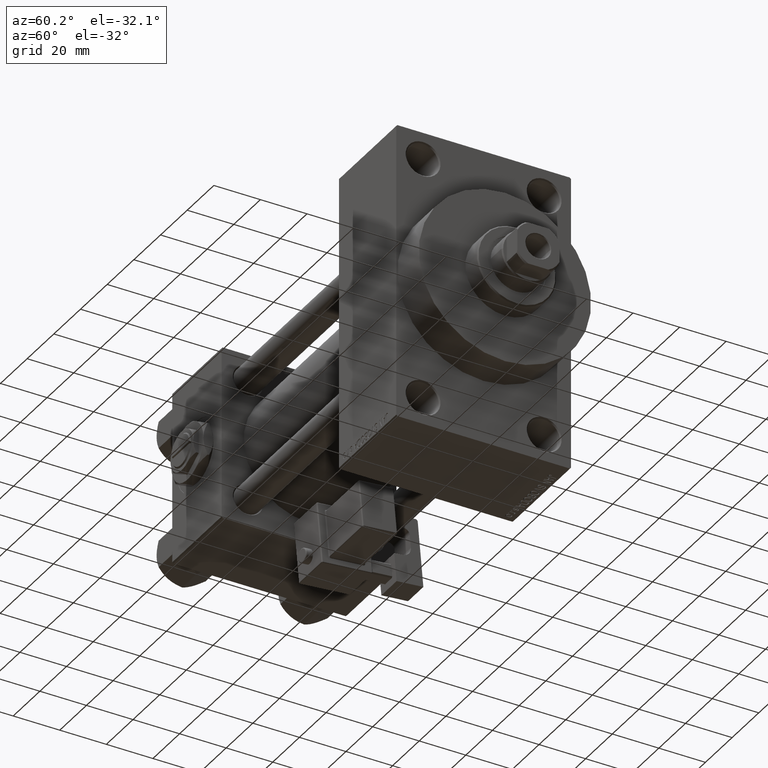
[diagram: clean part render]
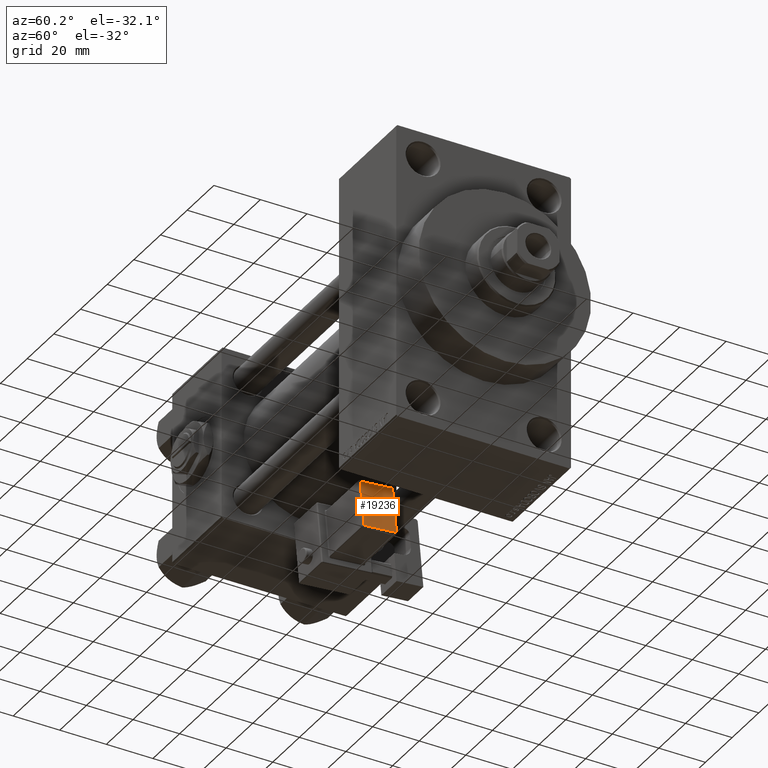
[diagram: same view with one face highlighted and labeled with its STEP entity id]
A machine part, auxiliary view. The second image highlights one B-rep face of the part: STEP entity #19236.
In plain terms, the highlighted planar face has unit normal (1, -0, 0).
Its self-contained STEP definition (entity closure, byte-faithful):
#1072 = LINE ( 'NONE', #5437, #34482 ) ;
#1773 = FACE_OUTER_BOUND ( 'NONE', #27756, .T. ) ;
#2431 = CARTESIAN_POINT ( 'NONE',  ( 33.74999999999999289, -21.75000000000000000, 22.00000000000001066 ) ) ;
#5437 = CARTESIAN_POINT ( 'NONE',  ( 33.75000000000000000, -35.75000000000000000, 2.000000000000008438 ) ) ;
#6315 = CARTESIAN_POINT ( 'NONE',  ( 33.75000000000000000, -21.75000000000000000, 2.500000000000010214 ) ) ;
#7273 = EDGE_CURVE ( 'NONE', #28248, #50378, #1072, .T. ) ;
#7900 = VECTOR ( 'NONE', #15156, 1000.000000000000000 ) ;
#7952 = ORIENTED_EDGE ( 'NONE', *, *, #16962, .T. ) ;
#8440 = VECTOR ( 'NONE', #45096, 1000.000000000000000 ) ;
#9043 = DIRECTION ( 'NONE',  ( 1.734723475976807587E-16, 0.000000000000000000, -1.000000000000000000 ) ) ;
#15119 = ORIENTED_EDGE ( 'NONE', *, *, #7273, .T. ) ;
#15156 = DIRECTION ( 'NONE',  ( 6.018531076210116420E-32, -1.000000000000000000, -4.625929269271486900E-16 ) ) ;
#16353 = CARTESIAN_POINT ( 'NONE',  ( 33.74999999999999289, -21.75000000000000000, 21.50000000000000711 ) ) ;
#16962 = EDGE_CURVE ( 'NONE', #50378, #39507, #49450, .T. ) ;
#18112 = LINE ( 'NONE', #2431, #27876 ) ;
#19236 = ADVANCED_FACE ( 'NONE', ( #1773 ), #44474, .T. ) ;
#21724 = DIRECTION ( 'NONE',  ( -1.734723475976807587E-16, 0.000000000000000000, 1.000000000000000000 ) ) ;
#23296 = AXIS2_PLACEMENT_3D ( 'NONE', #40358, #43970, #25416 ) ;
#24802 = ORIENTED_EDGE ( 'NONE', *, *, #38243, .T. ) ;
#25416 = DIRECTION ( 'NONE',  ( 1.734723475976807587E-16, 0.000000000000000000, -1.000000000000000000 ) ) ;
#27756 = EDGE_LOOP ( 'NONE', ( #24802, #15119, #7952, #34129 ) ) ;
#27876 = VECTOR ( 'NONE', #21724, 1000.000000000000000 ) ;
#28248 = VERTEX_POINT ( 'NONE', #31606 ) ;
#29067 = CARTESIAN_POINT ( 'NONE',  ( 33.75000000000000000, -35.75000000000000000, 2.500000000000008438 ) ) ;
#31606 = CARTESIAN_POINT ( 'NONE',  ( 33.74999999999999289, -35.75000000000000000, 21.50000000000000000 ) ) ;
#33275 = CARTESIAN_POINT ( 'NONE',  ( 33.75000000000000000, -21.24999999999999645, 2.500000000000010214 ) ) ;
#34129 = ORIENTED_EDGE ( 'NONE', *, *, #45247, .T. ) ;
#34482 = VECTOR ( 'NONE', #9043, 1000.000000000000000 ) ;
#35384 = VERTEX_POINT ( 'NONE', #16353 ) ;
#38243 = EDGE_CURVE ( 'NONE', #35384, #28248, #50390, .T. ) ;
#39507 = VERTEX_POINT ( 'NONE', #6315 ) ;
#40358 = CARTESIAN_POINT ( 'NONE',  ( 33.75000000000000000, -1.755404897227950732E-31, 4.853889726050491084E-15 ) ) ;
#43970 = DIRECTION ( 'NONE',  ( 1.000000000000000000, -2.006177025403371319E-32, 1.734723475976807587E-16 ) ) ;
#44474 = PLANE ( 'NONE',  #23296 ) ;
#45096 = DIRECTION ( 'NONE',  ( -5.473822126268816683E-48, 1.000000000000000000, 1.156482317317871725E-16 ) ) ;
#45247 = EDGE_CURVE ( 'NONE', #39507, #35384, #18112, .T. ) ;
#49450 = LINE ( 'NONE', #33275, #8440 ) ;
#49879 = CARTESIAN_POINT ( 'NONE',  ( 33.74999999999999289, -36.25000000000000000, 21.50000000000000000 ) ) ;
#50378 = VERTEX_POINT ( 'NONE', #29067 ) ;
#50390 = LINE ( 'NONE', #49879, #7900 ) ;